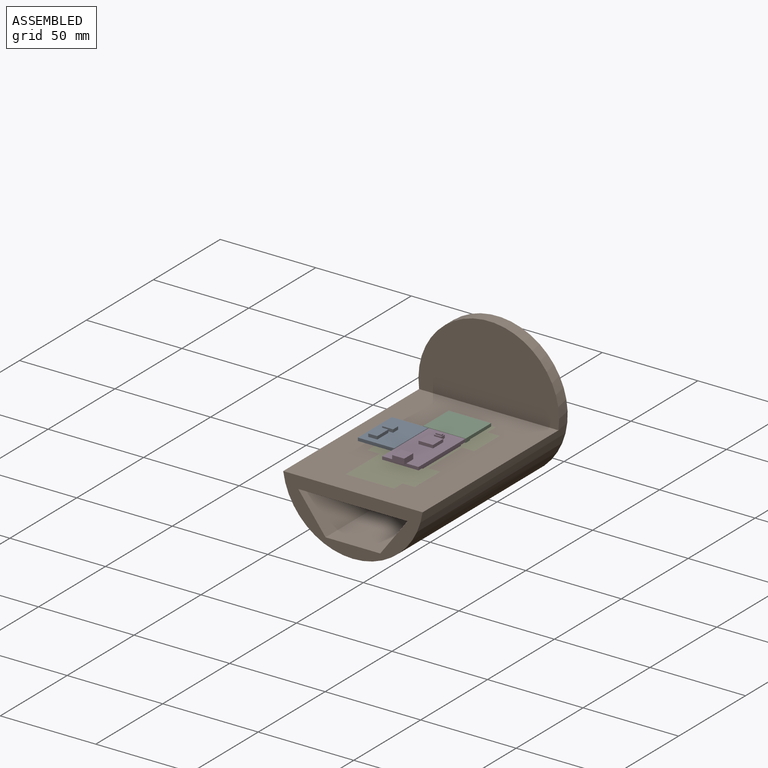
[diagram: assembled view]
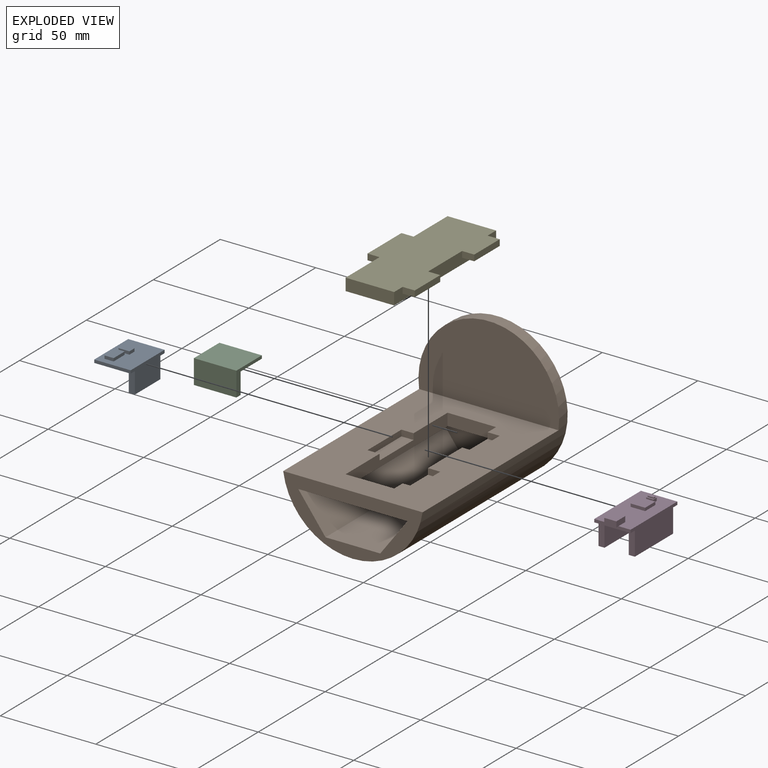
[diagram: exploded view]
GUIDED TOUR — MATED ASSEMBLY (Onshape document 22db25f95f0158fd4fec14de, AutoMate assembly 22db25f95f0158fd4fec14de_e89c0fc2c7fdcc075b0afa05_0247d4dd804453a1db17d36a_default)

This assembly has 5 components, labeled P0..P4 below (a component is one placed occurrence of a part; the same part can appear more than once), held together by 3 mates. A mate is a constraint between two components; its type names the relative motion it leaves free:
  PIN_SLOT — leaves rotation about the listed axis plus translation along a slot free.
Axis/direction vectors are unit vectors and 'through' points are millimeter coordinates, both in the assembly's world frame.

MATES
  1. PIN_SLOT "Right Back Pin": P1 <-> P4, axis (0.000, 0.000, 1.000) through (16.00, -34.98, -3.22) mm
  2. PIN_SLOT "Right Front Pin": P4 <-> P1, axis (0.000, 0.000, -1.000) through (16.00, -79.43, -3.22) mm
  3. PIN_SLOT "Left Middle Pin": P1 <-> P4, axis (0.000, 0.000, 1.000) through (-15.75, -57.20, -3.22) mm

ASSEMBLY ORDER
  1. P1 — the base component [order verified]
  2. P4 [order verified]
  3. P2 [order verified]
  4. P3 [order verified]
  5. P0 [order verified]
Order-tag legend:
  [order verified] — this step's position reverses a verified removal order: the component was checked to insert without passing through the ones already placed.

Of the 5 components, 5 carry the full construction recipe — the FeatureScript program that regenerates the part's solid from scratch; the rest are supplied as boundary geometry only.
Each toured component is shown spotlighted twice — in the assembled view, then in the exploded view, where a leader line traces a displaced component back to its assembled socket (saturated green if recipe-attached, orange if geometry-only; every other component desaturated gray) — followed by its recipe or geometry summary and the mates that hold it.
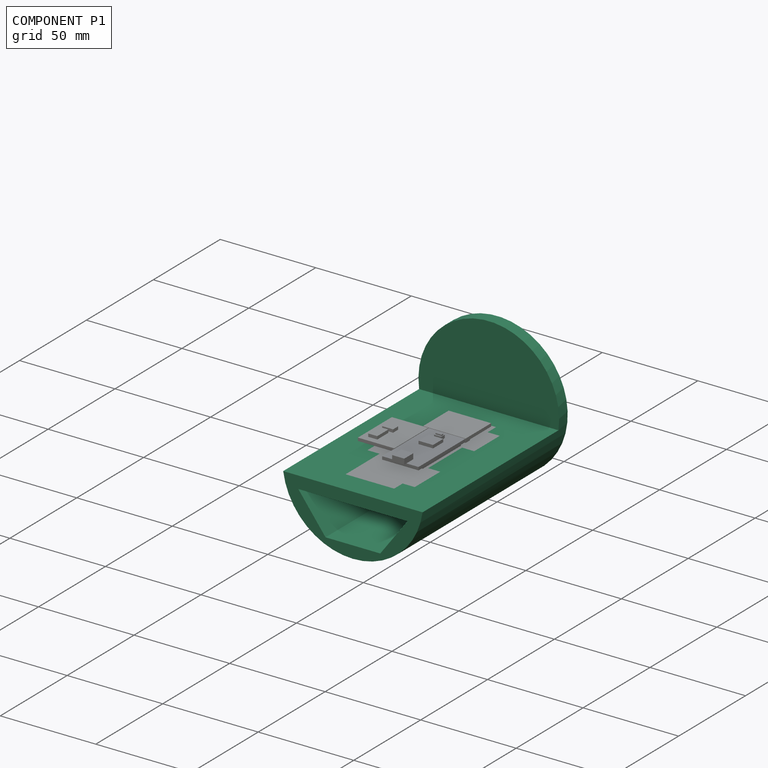
[diagram: component P1 — assembled]
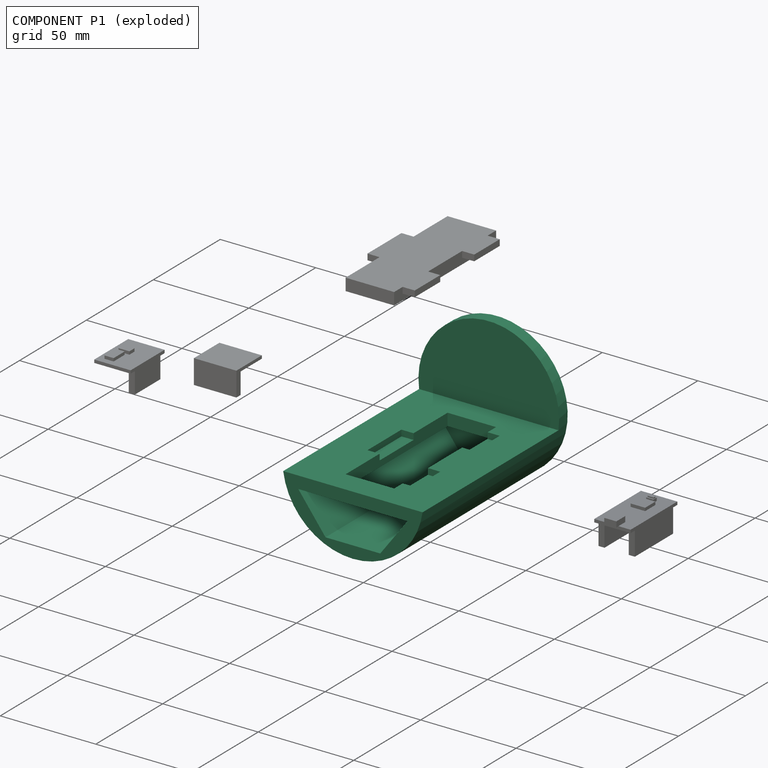
[diagram: component P1 — exploded]
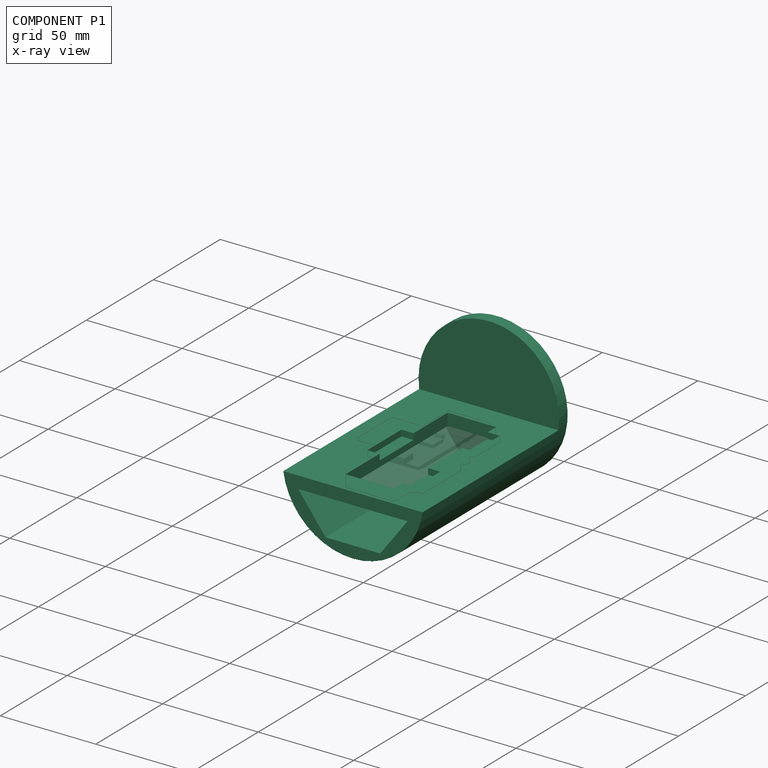
[diagram: component P1 — x-ray view]
COMPONENT P1 — recipe-attached (CADFS 00999147, mesh-verified: the recipe's output STEP matches this component's geometry to below the mesh-comparison resolution (tessellation chordal tolerance ~0.225 mm)).
Held by: PIN_SLOT mate "Right Back Pin" to P4; PIN_SLOT mate "Right Front Pin" to P4; PIN_SLOT mate "Left Middle Pin" to P4.
Construction recipe (FeatureScript — the CAD program that rebuilds this solid; sketch coordinates are in the units given by the * unit suffixes, e.g. mm):

FeatureScript 1549;
import(path : "onshape/std/geometry.fs", version : "1549.0");
import(path : "onshape/std/common.fs", version : "1549.0");
const mm = millimeter;
const VERTEX = EntityType.VERTEX;
const EDGE = EntityType.EDGE;
const FACE = EntityType.FACE;
const BODY = EntityType.BODY;
function v(x, y){return vector(x, y);}
function OD(order){return orderDisambiguation(order);}
function OSD(set){return originalSetDisambiguation(set);}
function TD(topology){return topologyDisambiguation(topology);}
function TDD(query){return trueDependencyDisambiguation(query);}
function sQuery(a, b, c) {return sketchEntityQuery(a, b, c);}

annotation { "Feature Type Name" : "Feature", "Feature Type Description" : "" }
export const myFeature = defineFeature(function(context is Context, id is Id, definition is map)
    precondition{}
    {
        {
            var Q0;
            Q0=qCreatedBy(makeId("Right.planeOp"),FACE);
            var sketch = newSketch(context, id + "F0", { "sketchPlane" : qUnion([Q0])});
            skCircle(sketch, "E0", {"center": v(0, 0) * mm, "radius": 36.83 * mm});
            skSolve(sketch);
        }
        {
            var Q0;
            Q0=makeQuery(id+"F0.imprint","IMPRINT",FACE,{"disambiguationData":[TD([[makeQuery(id+"F0.imprint","IMPRINT",EDGE,{"derivedFrom":sQuery(id+"F0.wireOp",EDGE,"E0")}),1.0]])]});
            var sketch = newSketch(context, id + "F1", { "sketchPlane" : qUnion([Q0])});
            skLineSegment(sketch, "E1.bottom", {"start": v(-20.67, -30.48) * mm, "end": v(20.67, -30.48) * mm});
            skPoint(sketch, "E2", {"position": v(20.67, -30.48) * mm});
            skPoint(sketch, "E3", {"position": v(-20.67, -30.48) * mm});
            skLineSegment(sketch, "E4", {"start": v(12.75, -11.43) * mm, "end": v(35.01, -11.43) * mm});
            skLineSegment(sketch, "E5", {"start": v(-18.88, -11.43) * mm, "end": v(-35, -11.44) * mm});
            skLineSegment(sketch, "E6", {"start": v(12.75, -11.43) * mm, "end": v(-18.88, -11.43) * mm});
            skLineSegment(sketch, "E7", {"start": v(0, -36.83) * mm, "end": v(0, -30.48) * mm});
            skLineSegment(sketch, "E8", {"start": v(0, -30.48) * mm, "end": v(0, -11.43) * mm});
            skLineSegment(sketch, "E9", {"start": v(36.48, -5.08) * mm, "end": v(-36.48, -5.08) * mm});
            skLineSegment(sketch, "E10", {"start": v(0, 0) * mm, "end": v(0, -11.43) * mm});
            skLineSegment(sketch, "E11", {"start": v(-6.28, -5.08) * mm, "end": v(-6.28, -11.43) * mm});
            skLineSegment(sketch, "E12", {"start": v(-35, -11.44) * mm, "end": v(-28.57, -11.43) * mm});
            skLineSegment(sketch, "E13", {"start": v(-20.67, -30.48) * mm, "end": v(-14.32, -30.48) * mm});
            skLineSegment(sketch, "E14", {"start": v(20.67, -30.48) * mm, "end": v(14.32, -30.48) * mm});
            skLineSegment(sketch, "E15", {"start": v(35.01, -11.43) * mm, "end": v(28.58, -11.43) * mm});
            skLineSegment(sketch, "E16", {"start": v(28.58, -11.43) * mm, "end": v(14.32, -30.48) * mm});
            skLineSegment(sketch, "E17", {"start": v(-28.57, -11.43) * mm, "end": v(-14.32, -30.48) * mm});
            skLineSegment(sketch, "E18", {"start": v(-28.57, -11.43) * mm, "end": v(-28.58, -5.08) * mm});
            skLineSegment(sketch, "E19", {"start": v(28.58, -11.43) * mm, "end": v(28.58, -5.08) * mm});
            skLineSegment(sketch, "E20", {"start": v(-28.57, -8.26) * mm, "end": v(28.58, -8.26) * mm});
            skSolve(sketch);
        }
        {
            var Q0;
            {var subQ1=sQuery(id+"F1.wireOp",EDGE,"E5");var subQ5=sQuery(id+"F1.wireOp",EDGE,"E6");var subQ6=makeQuery(id+"F1.imprint","INTERSECT",VERTEX,{"derivedFrom":[subQ1,subQ5]});Q0=makeQuery(id+"F1.imprint","IMPRINT",FACE,{"disambiguationData":[TD([[makeQuery(id+"F1.imprint","IMPRINT",EDGE,{"disambiguationData":[TD([[subQ6,1.0]])],"derivedFrom":subQ5}),-1.0]])]});}
            var Q1;
            {var subQ0=sQuery(id+"F1.wireOp",EDGE,"E19");var subQ3=sQuery(id+"F1.wireOp",EDGE,"E20");var subQ4=makeQuery(id+"F1.imprint","INTERSECT",VERTEX,{"derivedFrom":[subQ0,subQ3]});Q1=makeQuery(id+"F1.imprint","IMPRINT",FACE,{"disambiguationData":[TD([[makeQuery(id+"F1.imprint","IMPRINT",EDGE,{"disambiguationData":[TD([[subQ4,1.0]])],"derivedFrom":subQ3}),-1.0]])]});}
            var Q2;
            {var subQ0=sQuery(id+"F1.wireOp",EDGE,"xOvHg0tn-TEt3-L2ib-0Wm1-0tn3J9Pu9Pb8");Q2=makeQuery(id+"F1.imprint","IMPRINT",FACE,{"disambiguationData":[TD([[makeQuery(id+"F1.imprint","IMPRINT",EDGE,{"derivedFrom":subQ0}),1.0]])]});}
            var Q3;
            {var subQ0=sQuery(id+"F1.wireOp",EDGE,"b1sQyHkT-liFX-Zt2v-cC6f-3GMuSH2HSxCr");Q3=makeQuery(id+"F1.imprint","IMPRINT",FACE,{"disambiguationData":[TD([[makeQuery(id+"F1.imprint","IMPRINT",EDGE,{"derivedFrom":subQ0}),-1.0]])]});}
            var Q4;
            {var subQ3=sQuery(id+"F1.wireOp",EDGE,"tBNurBHI-iiEl-UDbp-ZbHp-QAcbBZfyp1oP");Q4=makeQuery(id+"F1.imprint","IMPRINT",FACE,{"disambiguationData":[TD([[makeQuery(id+"F1.imprint","IMPRINT",EDGE,{"derivedFrom":subQ3}),1.0]])]});}
            var Q5;
            {var subQ3=sQuery(id+"F1.wireOp",EDGE,"T7q5g9tG-IPWu-WYv1-VDKW-RcaV8io13oG5");Q5=makeQuery(id+"F1.imprint","IMPRINT",FACE,{"disambiguationData":[TD([[makeQuery(id+"F1.imprint","IMPRINT",EDGE,{"derivedFrom":subQ3}),-1.0]])]});}
            var Q6;
            {var subQ0=sQuery(id+"F1.wireOp",EDGE,"E7");Q6=makeQuery(id+"F1.imprint","IMPRINT",FACE,{"disambiguationData":[TD([[makeQuery(id+"F1.imprint","IMPRINT",EDGE,{"derivedFrom":subQ0}),1.0]])]});}
            var Q7;
            {var subQ0=sQuery(id+"F1.wireOp",EDGE,"E7");Q7=makeQuery(id+"F1.imprint","IMPRINT",FACE,{"disambiguationData":[TD([[makeQuery(id+"F1.imprint","IMPRINT",EDGE,{"derivedFrom":subQ0}),-1.0]])]});}
            var Q8;
            {var subQ0=sQuery(id+"F1.wireOp",EDGE,"E11");var subQ1=sQuery(id+"F1.wireOp",EDGE,"E9");var subQ2=makeQuery(id+"F1.imprint","INTERSECT",VERTEX,{"derivedFrom":[subQ1,subQ0]});var subQ9=sQuery(id+"F1.wireOp",EDGE,"E6");var subQ10=makeQuery(id+"F1.imprint","INTERSECT",VERTEX,{"derivedFrom":[subQ9,subQ0]});Q8=qUnion([makeQuery(id+"F1.imprint","IMPRINT",FACE,{"disambiguationData":[TD([[makeQuery(id+"F1.imprint","IMPRINT",EDGE,{"disambiguationData":[TD([[subQ10,1.0]])],"derivedFrom":subQ0}),1.0]])]}),makeQuery(id+"F1.imprint","IMPRINT",FACE,{"disambiguationData":[TD([[makeQuery(id+"F1.imprint","IMPRINT",EDGE,{"disambiguationData":[TD([[subQ2,1.0]])],"derivedFrom":subQ1}),1.0]])]})]);}
            var Q9;
            {var subQ0=sQuery(id+"F1.wireOp",EDGE,"E18");var subQ4=sQuery(id+"F1.wireOp",EDGE,"E9");var subQ5=makeQuery(id+"F1.imprint","INTERSECT",VERTEX,{"derivedFrom":[subQ4,subQ0]});Q9=makeQuery(id+"F1.imprint","IMPRINT",FACE,{"disambiguationData":[TD([[makeQuery(id+"F1.imprint","IMPRINT",EDGE,{"disambiguationData":[TD([[subQ5,-1.0]])],"derivedFrom":subQ4}),1.0]])]});}
            var Q10;
            {var subQ0=sQuery(id+"F1.wireOp",EDGE,"E11");var subQ1=sQuery(id+"F1.wireOp",EDGE,"E9");var subQ2=makeQuery(id+"F1.imprint","INTERSECT",VERTEX,{"derivedFrom":[subQ1,subQ0]});Q10=makeQuery(id+"F1.imprint","IMPRINT",FACE,{"disambiguationData":[TD([[makeQuery(id+"F1.imprint","IMPRINT",EDGE,{"disambiguationData":[TD([[subQ2,-1.0]])],"derivedFrom":subQ1}),1.0]])]});}
            var Q11;
            {var subQ0=sQuery(id+"F1.wireOp",EDGE,"E19");var subQ1=sQuery(id+"F1.wireOp",EDGE,"E9");var subQ2=makeQuery(id+"F1.imprint","INTERSECT",VERTEX,{"derivedFrom":[subQ1,subQ0]});Q11=makeQuery(id+"F1.imprint","IMPRINT",FACE,{"disambiguationData":[TD([[makeQuery(id+"F1.imprint","IMPRINT",EDGE,{"disambiguationData":[TD([[subQ2,-1.0]])],"derivedFrom":subQ1}),1.0]])]});}
            var Q12;
            {var subQ0=sQuery(id+"F1.wireOp",EDGE,"E19");var subQ6=sQuery(id+"F1.wireOp",EDGE,"E9");var subQ7=makeQuery(id+"F1.imprint","INTERSECT",VERTEX,{"derivedFrom":[subQ6,subQ0]});Q12=makeQuery(id+"F1.imprint","IMPRINT",FACE,{"disambiguationData":[TD([[makeQuery(id+"F1.imprint","IMPRINT",EDGE,{"disambiguationData":[TD([[subQ7,1.0]])],"derivedFrom":subQ6}),1.0]])]});}
            var Q13;
            {var subQ0=sQuery(id+"F1.wireOp",EDGE,"E16");Q13=makeQuery(id+"F1.imprint","IMPRINT",FACE,{"disambiguationData":[TD([[makeQuery(id+"F1.imprint","IMPRINT",EDGE,{"derivedFrom":subQ0}),1.0]])]});}
            var Q14;
            {var subQ0=sQuery(id+"F1.wireOp",EDGE,"E17");Q14=makeQuery(id+"F1.imprint","IMPRINT",FACE,{"disambiguationData":[TD([[makeQuery(id+"F1.imprint","IMPRINT",EDGE,{"derivedFrom":subQ0}),-1.0]])]});}
            extrude(context, id + "F2", {"entities" : qUnion([Q0, Q1, Q2, Q3, Q4, Q5, Q6, Q7, Q8, Q9, Q10, Q11, Q12, Q13, Q14]), "depth" : 101.6 * mm, "offsetDistance" : 25.4 * mm});
        }
        {
            var Q0;
            Q0 = qSketchRegion(id + "F0", true);
            extrude(context, id + "F3", {"entities" : qUnion([Q0]), "operationType" : NewBodyOperationType.ADD, "oppositeDirection" : true, "depth" : 6.35 * mm, "offsetDistance" : 25.4 * mm});
        }
        {
            var Q0;
            Q0=makeQuery(id+"F2.opExtrude","SWEPT_FACE",FACE,{"disambiguationData":[OSD([sQuery(id+"F1.wireOp",EDGE,"E9")])]});
            var sketch = newSketch(context, id + "F4", { "sketchPlane" : qUnion([Q0])});
            skPoint(sketch, "E21.startSnap0", {"position": v(101.6, 0) * mm});
            skLineSegment(sketch, "E22.bottom", {"start": v(12.7, 12.7) * mm, "end": v(50.8, 12.7) * mm});
            skLineSegment(sketch, "E22.top", {"start": v(12.7, -12.7) * mm, "end": v(50.8, -12.7) * mm});
            skLineSegment(sketch, "E22.left", {"start": v(12.7, 12.7) * mm, "end": v(12.7, -12.7) * mm});
            skPoint(sketch, "E22.middle", {"position": v(31.75, 0) * mm});
            skLineSegment(sketch, "E23.bottom", {"start": v(12.7, -12.7) * mm, "end": v(88.9, -12.7) * mm});
            skLineSegment(sketch, "E23.top", {"start": v(12.7, -19.05) * mm, "end": v(88.9, -19.05) * mm});
            skLineSegment(sketch, "E23.left", {"start": v(12.7, -12.7) * mm, "end": v(12.7, -19.05) * mm});
            skLineSegment(sketch, "E23.right", {"start": v(88.9, -12.7) * mm, "end": v(88.9, -19.05) * mm});
            skLineSegment(sketch, "E24.bottom", {"start": v(12.7, 12.7) * mm, "end": v(88.9, 12.7) * mm});
            skLineSegment(sketch, "E24.top", {"start": v(12.7, 19.05) * mm, "end": v(88.9, 19.05) * mm});
            skLineSegment(sketch, "E24.left", {"start": v(12.7, 12.7) * mm, "end": v(12.7, 19.05) * mm});
            skLineSegment(sketch, "E24.right", {"start": v(88.9, 12.7) * mm, "end": v(88.9, 19.05) * mm});
            skLineSegment(sketch, "E25", {"start": v(12.7, -15.88) * mm, "end": v(38.1, -15.88) * mm});
            skLineSegment(sketch, "E26", {"start": v(38.1, -12.7) * mm, "end": v(38.1, -19.05) * mm});
            skLineSegment(sketch, "E27", {"start": v(88.9, -15.88) * mm, "end": v(63.5, -15.88) * mm});
            skLineSegment(sketch, "E28", {"start": v(63.5, -12.7) * mm, "end": v(63.5, -19.05) * mm});
            skLineSegment(sketch, "E29", {"start": v(12.7, 15.87) * mm, "end": v(19.05, 15.88) * mm});
            skLineSegment(sketch, "E30", {"start": v(19.05, 15.88) * mm, "end": v(19.05, 19.05) * mm});
            skLineSegment(sketch, "E31", {"start": v(19.05, 19.05) * mm, "end": v(19.05, 12.7) * mm});
            skLineSegment(sketch, "E32", {"start": v(88.9, 15.88) * mm, "end": v(82.55, 15.88) * mm});
            skLineSegment(sketch, "E33", {"start": v(82.55, 15.88) * mm, "end": v(82.55, 19.05) * mm});
            skLineSegment(sketch, "E34", {"start": v(82.55, 19.05) * mm, "end": v(82.55, 12.7) * mm});
            skLineSegment(sketch, "E35", {"start": v(50.8, 12.7) * mm, "end": v(50.8, 19.05) * mm});
            skLineSegment(sketch, "E36", {"start": v(50.8, 15.88) * mm, "end": v(38.1, 15.88) * mm});
            skLineSegment(sketch, "E37", {"start": v(50.8, 15.88) * mm, "end": v(63.5, 15.88) * mm});
            skLineSegment(sketch, "E38", {"start": v(38.1, 19.05) * mm, "end": v(38.1, 12.7) * mm});
            skLineSegment(sketch, "E39", {"start": v(0, 0) * mm, "end": v(12.7, 0) * mm});
            skLineSegment(sketch, "E40", {"start": v(88.9, 12.7) * mm, "end": v(88.9, -12.7) * mm});
            skLineSegment(sketch, "E41", {"start": v(101.6, 0) * mm, "end": v(88.9, 0) * mm});
            skLineSegment(sketch, "E42", {"start": v(63.5, 19.05) * mm, "end": v(63.5, 12.7) * mm});
            skSolve(sketch);
        }
        {
            var Q0;
            {var subQ12=sQuery(id+"F4.wireOp",EDGE,"E22.bottom");var subQ15=makeQuery(id+"F4.imprint","INTERSECT",VERTEX,{"derivedFrom":[subQ12,sQuery(id+"F4.wireOp",EDGE,"E31")]});Q0=makeQuery(id+"F4.imprint","IMPRINT",FACE,{"disambiguationData":[TD([[makeQuery(id+"F4.imprint","IMPRINT",EDGE,{"disambiguationData":[TD([[subQ15,-1.0]])],"derivedFrom":subQ12}),-1.0]])]});}
            extrude(context, id + "F5", {"entities" : qUnion([Q0]), "operationType" : NewBodyOperationType.REMOVE, "oppositeDirection" : true, "depth" : 6.35 * mm, "offsetDistance" : 25.4 * mm});
        }
        {
            var Q0;
            {var subQ2=sQuery(id+"F4.wireOp",EDGE,"E22.top");var subQ4=sQuery(id+"F4.wireOp",EDGE,"E23.bottom");var subQ5=makeQuery(id+"F4.imprint","INTERSECT",VERTEX,{"derivedFrom":[subQ2,subQ4]});Q0=makeQuery(id+"F4.imprint","IMPRINT",FACE,{"disambiguationData":[TD([[makeQuery(id+"F4.imprint","IMPRINT",EDGE,{"disambiguationData":[TD([[subQ5,1.0]])],"derivedFrom":subQ2}),-1.0]])]});}
            var Q1;
            {var subQ1=sQuery(id+"F4.wireOp",EDGE,"E30");Q1=makeQuery(id+"F4.imprint","IMPRINT",FACE,{"disambiguationData":[TD([[makeQuery(id+"F4.imprint","IMPRINT",EDGE,{"derivedFrom":subQ1}),-1.0]])]});}
            var Q2;
            {var subQ0=sQuery(id+"F4.wireOp",EDGE,"E33");Q2=makeQuery(id+"F4.imprint","IMPRINT",FACE,{"disambiguationData":[TD([[makeQuery(id+"F4.imprint","IMPRINT",EDGE,{"derivedFrom":subQ0}),1.0]])]});}
            extrude(context, id + "F6", {"entities" : qUnion([Q0, Q1, Q2]), "operationType" : NewBodyOperationType.REMOVE, "oppositeDirection" : true, "depth" : 3.17 * mm, "offsetDistance" : 25.4 * mm});
        }
    });
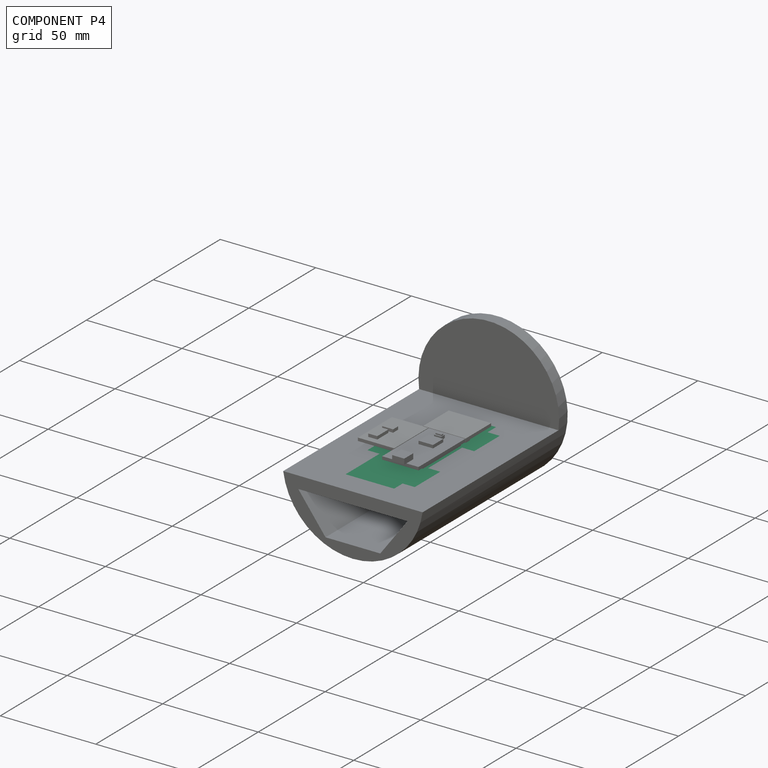
[diagram: component P4 — assembled]
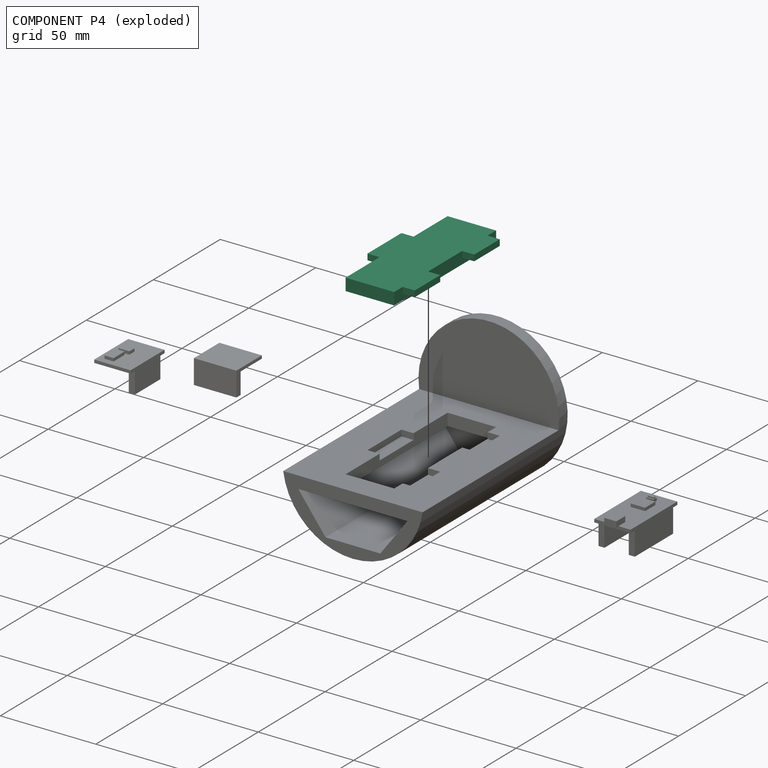
[diagram: component P4 — exploded]
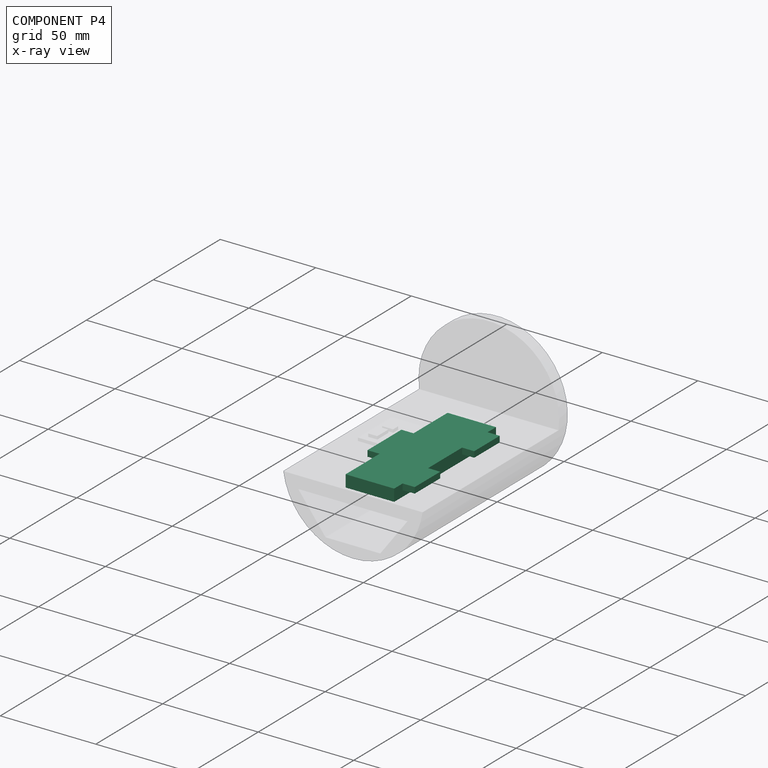
[diagram: component P4 — x-ray view]
COMPONENT P4 — recipe-attached (CADFS 00999148, mesh-verified: the recipe's output STEP matches this component's geometry to below the mesh-comparison resolution (tessellation chordal tolerance ~0.128 mm)).
Held by: PIN_SLOT mate "Right Back Pin" to P1; PIN_SLOT mate "Right Front Pin" to P1; PIN_SLOT mate "Left Middle Pin" to P1.
Construction recipe (FeatureScript — the CAD program that rebuilds this solid; sketch coordinates are in the units given by the * unit suffixes, e.g. mm):

FeatureScript 1549;
import(path : "onshape/std/geometry.fs", version : "1549.0");
import(path : "onshape/std/common.fs", version : "1549.0");
const mm = millimeter;
const VERTEX = EntityType.VERTEX;
const EDGE = EntityType.EDGE;
const FACE = EntityType.FACE;
const BODY = EntityType.BODY;
function v(x, y){return vector(x, y);}
function OD(order){return orderDisambiguation(order);}
function OSD(set){return originalSetDisambiguation(set);}
function TD(topology){return topologyDisambiguation(topology);}
function TDD(query){return trueDependencyDisambiguation(query);}
function sQuery(a, b, c) {return sketchEntityQuery(a, b, c);}

annotation { "Feature Type Name" : "Feature", "Feature Type Description" : "" }
export const myFeature = defineFeature(function(context is Context, id is Id, definition is map)
    precondition{}
    {
        {
            var Q0;
            Q0=qCreatedBy(makeId("Right.planeOp"),FACE);
            var sketch = newSketch(context, id + "F0", { "sketchPlane" : qUnion([Q0])});
            skLineSegment(sketch, "E0.bottom", {"start": v(12.7, -3.17) * mm, "end": v(-12.7, -3.18) * mm});
            skLineSegment(sketch, "E0.top", {"start": v(12.7, 3.18) * mm, "end": v(-12.7, 3.17) * mm});
            skLineSegment(sketch, "E0.left", {"start": v(12.7, -3.17) * mm, "end": v(12.7, 3.18) * mm});
            skLineSegment(sketch, "E0.right", {"start": v(-12.7, -3.18) * mm, "end": v(-12.7, 3.17) * mm});
            skPoint(sketch, "E0.middle", {"position": v(0, 0) * mm});
            skSolve(sketch);
        }
        {
            var Q0;
            Q0 = qSketchRegion(id + "F0", true);
            extrude(context, id + "F1", {"entities" : qUnion([Q0]), "depth" : 76.2 * mm, "offsetDistance" : 25.4 * mm});
        }
        {
            var Q0;
            Q0=makeQuery(id+"F1.opExtrude","SWEPT_FACE",FACE,{"disambiguationData":[OSD([sQuery(id+"F0.wireOp",EDGE,"E0.right")])]});
            var sketch = newSketch(context, id + "F2", { "sketchPlane" : qUnion([Q0])});
            skLineSegment(sketch, "E1", {"start": v(0, 0) * mm, "end": v(25.4, 0) * mm});
            skLineSegment(sketch, "E2", {"start": v(76.2, 0) * mm, "end": v(50.8, 0) * mm});
            skLineSegment(sketch, "E3.bottom", {"start": v(25.4, 0) * mm, "end": v(50.8, 0) * mm});
            skLineSegment(sketch, "E3.top", {"start": v(25.4, 3.17) * mm, "end": v(50.8, 3.17) * mm});
            skLineSegment(sketch, "E3.left", {"start": v(25.4, 0) * mm, "end": v(25.4, 3.17) * mm});
            skLineSegment(sketch, "E3.right", {"start": v(50.8, 0) * mm, "end": v(50.8, 3.17) * mm});
            skLineSegment(sketch, "E4", {"start": v(16, 0) * mm, "end": v(16, 3.17) * mm});
            skSolve(sketch);
        }
        {
            var Q0;
            Q0=makeQuery(id+"F2.imprint","IMPRINT",FACE,{"disambiguationData":[TD([[makeQuery(id+"F2.imprint","IMPRINT",EDGE,{"derivedFrom":sQuery(id+"F2.wireOp",EDGE,"E3.bottom")}),1.0]])]});
            extrude(context, id + "F3", {"entities" : qUnion([Q0]), "operationType" : NewBodyOperationType.ADD, "depth" : 6.35 * mm, "offsetDistance" : 25.4 * mm});
        }
        {
            var Q0;
            Q0=makeQuery(id+"F1.opExtrude","SWEPT_FACE",FACE,{"disambiguationData":[OSD([sQuery(id+"F0.wireOp",EDGE,"E0.left")])]});
            var sketch = newSketch(context, id + "F4", { "sketchPlane" : qUnion([Q0])});
            skLineSegment(sketch, "E5", {"start": v(-76.2, 0) * mm, "end": v(-69.85, 0) * mm});
            skLineSegment(sketch, "E6", {"start": v(-6.35, 0) * mm, "end": v(0, 0) * mm});
            skLineSegment(sketch, "E7", {"start": v(-38.1, 0) * mm, "end": v(-25.4, 0) * mm});
            skPoint(sketch, "E7.startSnap0", {"position": v(-38.1, 0) * mm});
            skLineSegment(sketch, "E8", {"start": v(-38.1, 0) * mm, "end": v(-50.8, 0) * mm});
            skLineSegment(sketch, "E9", {"start": v(-50.8, 3.17) * mm, "end": v(-50.8, -3.17) * mm});
            skLineSegment(sketch, "E10", {"start": v(-69.85, 3.17) * mm, "end": v(-69.85, -3.17) * mm});
            skLineSegment(sketch, "E11", {"start": v(-25.4, 3.17) * mm, "end": v(-25.4, -3.17) * mm});
            skLineSegment(sketch, "E12", {"start": v(-6.35, 3.17) * mm, "end": v(-6.35, -3.17) * mm});
            skLineSegment(sketch, "E13", {"start": v(-69.85, 0) * mm, "end": v(-50.8, 0) * mm});
            skLineSegment(sketch, "E14", {"start": v(-25.4, 0) * mm, "end": v(-6.35, 0) * mm});
            skLineSegment(sketch, "E15", {"start": v(-38.1, 0) * mm, "end": v(-38.1, 3.18) * mm});
            skSolve(sketch);
        }
        {
            var Q0;
            {var subQ7=sQuery(id+"F4.wireOp",EDGE,"E9");var subQ8=makeQuery(id+"F4.imprint","INTERSECT",VERTEX,{"derivedFrom":[sQuery(id+"F4.wireOp",EDGE,"E8"),subQ7]});Q0=makeQuery(id+"F4.imprint","IMPRINT",FACE,{"disambiguationData":[TD([[makeQuery(id+"F4.imprint","IMPRINT",EDGE,{"disambiguationData":[TD([[subQ8,1.0]])],"derivedFrom":subQ7}),-1.0]])]});}
            var Q1;
            {var subQ7=sQuery(id+"F4.wireOp",EDGE,"E11");var subQ8=makeQuery(id+"F4.imprint","INTERSECT",VERTEX,{"derivedFrom":[sQuery(id+"F4.wireOp",EDGE,"E7"),subQ7]});Q1=makeQuery(id+"F4.imprint","IMPRINT",FACE,{"disambiguationData":[TD([[makeQuery(id+"F4.imprint","IMPRINT",EDGE,{"disambiguationData":[TD([[subQ8,1.0]])],"derivedFrom":subQ7}),1.0]])]});}
            extrude(context, id + "F5", {"entities" : qUnion([Q0, Q1]), "operationType" : NewBodyOperationType.ADD, "depth" : 6.35 * mm, "offsetDistance" : 25.4 * mm});
        }
    });
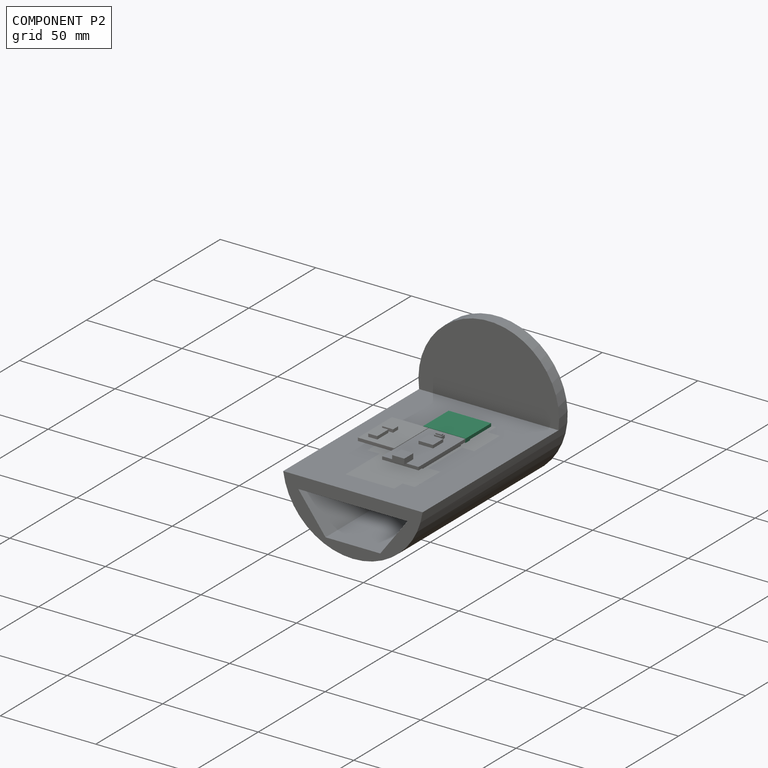
[diagram: component P2 — assembled]
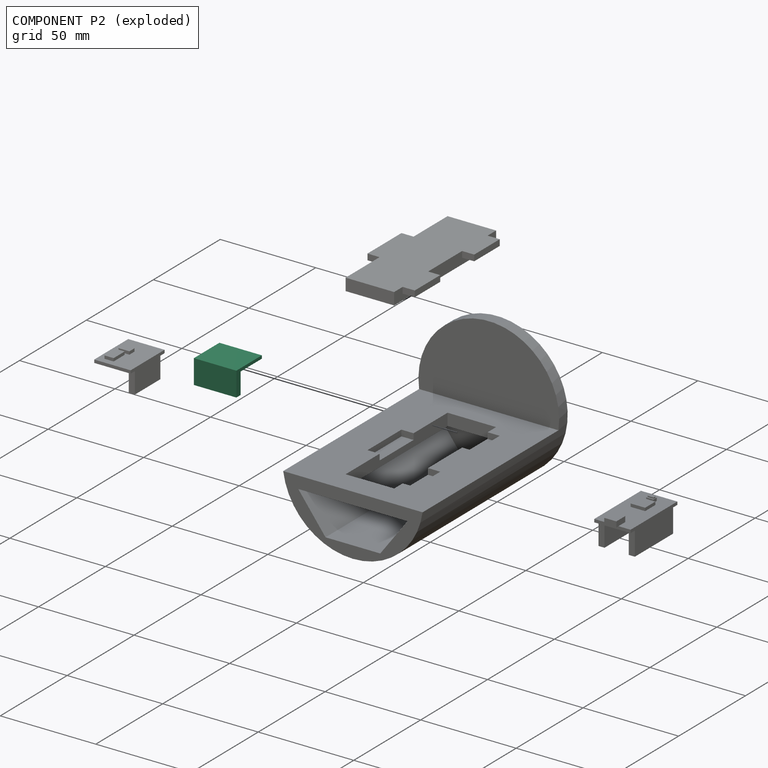
[diagram: component P2 — exploded]
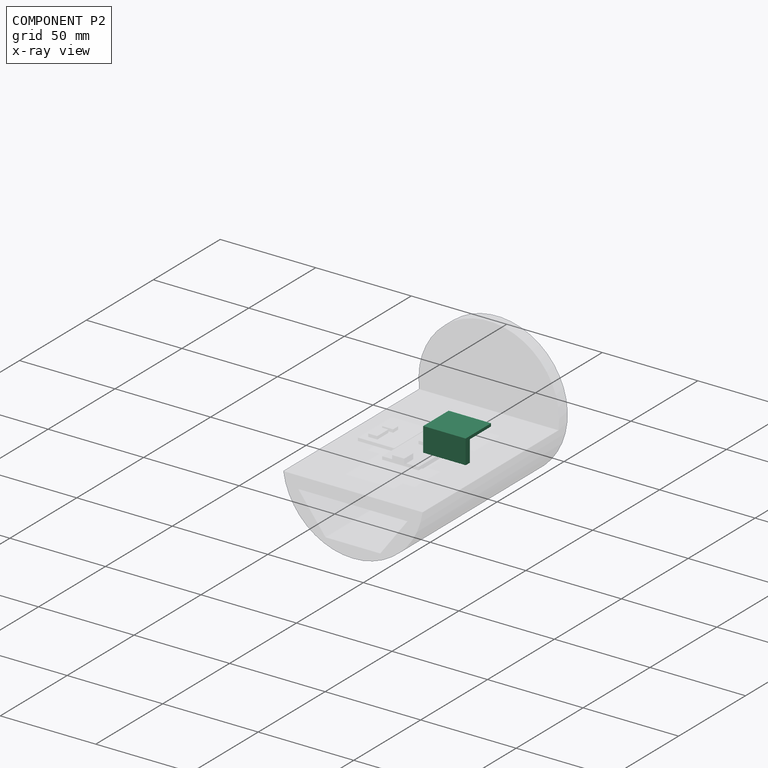
[diagram: component P2 — x-ray view]
COMPONENT P2 — recipe-attached (CADFS 00999142, mesh-verified: the recipe's output STEP matches this component's geometry to below the mesh-comparison resolution (tessellation chordal tolerance ~0.0479 mm)).
Held by: no mates (free).
Construction recipe (FeatureScript — the CAD program that rebuilds this solid; sketch coordinates are in the units given by the * unit suffixes, e.g. mm):

FeatureScript 1549;
import(path : "onshape/std/geometry.fs", version : "1549.0");
import(path : "onshape/std/common.fs", version : "1549.0");
const mm = millimeter;
const VERTEX = EntityType.VERTEX;
const EDGE = EntityType.EDGE;
const FACE = EntityType.FACE;
const BODY = EntityType.BODY;
function v(x, y){return vector(x, y);}
function OD(order){return orderDisambiguation(order);}
function OSD(set){return originalSetDisambiguation(set);}
function TD(topology){return topologyDisambiguation(topology);}
function TDD(query){return trueDependencyDisambiguation(query);}
function sQuery(a, b, c) {return sketchEntityQuery(a, b, c);}

annotation { "Feature Type Name" : "Feature", "Feature Type Description" : "" }
export const myFeature = defineFeature(function(context is Context, id is Id, definition is map)
    precondition{}
    {
        {
            var Q0;
            Q0=qCreatedBy(makeId("Top.planeOp"),FACE);
            var sketch = newSketch(context, id + "F0", { "sketchPlane" : qUnion([Q0])});
            skLineSegment(sketch, "E0.bottom", {"start": v(9.53, 11.11) * mm, "end": v(-9.52, 11.11) * mm});
            skLineSegment(sketch, "E0.top", {"start": v(9.52, -11.11) * mm, "end": v(-9.53, -11.11) * mm});
            skLineSegment(sketch, "E0.left", {"start": v(9.53, 11.11) * mm, "end": v(9.52, -11.11) * mm});
            skLineSegment(sketch, "E0.right", {"start": v(-9.52, 11.11) * mm, "end": v(-9.53, -11.11) * mm});
            skPoint(sketch, "E0.middle", {"position": v(0, 0) * mm});
            skLineSegment(sketch, "E1.bottom", {"start": v(9.53, 11.11) * mm, "end": v(-3.18, 11.11) * mm});
            skLineSegment(sketch, "E1.top", {"start": v(9.53, -11.11) * mm, "end": v(-3.17, -11.11) * mm});
            skLineSegment(sketch, "E1.left", {"start": v(9.53, 11.11) * mm, "end": v(9.53, -11.11) * mm});
            skLineSegment(sketch, "E1.right", {"start": v(-3.18, 11.11) * mm, "end": v(-3.17, -11.11) * mm});
            skLineSegment(sketch, "E2.top", {"start": v(9.53, 8.06) * mm, "end": v(-3.18, 8.06) * mm});
            skLineSegment(sketch, "E2.left", {"start": v(9.53, 11.11) * mm, "end": v(9.53, 8.06) * mm});
            skLineSegment(sketch, "E2.right", {"start": v(-3.18, 11.11) * mm, "end": v(-3.18, 8.06) * mm});
            skLineSegment(sketch, "E3.bottom", {"start": v(9.52, -11.11) * mm, "end": v(-3.17, -11.11) * mm});
            skLineSegment(sketch, "E3.top", {"start": v(9.52, -8.06) * mm, "end": v(-3.17, -8.06) * mm});
            skLineSegment(sketch, "E3.left", {"start": v(9.52, -11.11) * mm, "end": v(9.52, -8.06) * mm});
            skLineSegment(sketch, "E3.right", {"start": v(-3.17, -11.11) * mm, "end": v(-3.17, -8.06) * mm});
            skLineSegment(sketch, "E4.bottom", {"start": v(-9.52, 11.11) * mm, "end": v(-6.35, 11.11) * mm});
            skLineSegment(sketch, "E4.top", {"start": v(-9.52, -11.11) * mm, "end": v(-6.35, -11.11) * mm});
            skLineSegment(sketch, "E4.left", {"start": v(-9.52, 11.11) * mm, "end": v(-9.52, -11.11) * mm});
            skLineSegment(sketch, "E4.right", {"start": v(-6.35, 11.11) * mm, "end": v(-6.35, -11.11) * mm});
            skSolve(sketch);
        }
        {
            var Q0;
            {var subQ5=sQuery(id+"F0.wireOp",EDGE,"E4.right");Q0=makeQuery(id+"F0.imprint","IMPRINT",FACE,{"disambiguationData":[TD([[makeQuery(id+"F0.imprint","IMPRINT",EDGE,{"derivedFrom":subQ5}),1.0]])]});}
            var Q1;
            {var subQ5=sQuery(id+"F0.wireOp",EDGE,"E3.top");Q1=makeQuery(id+"F0.imprint","IMPRINT",FACE,{"disambiguationData":[TD([[makeQuery(id+"F0.imprint","IMPRINT",EDGE,{"derivedFrom":subQ5}),1.0]])]});}
            var Q2;
            {var subQ5=sQuery(id+"F0.wireOp",EDGE,"E2.top");Q2=makeQuery(id+"F0.imprint","IMPRINT",FACE,{"disambiguationData":[TD([[makeQuery(id+"F0.imprint","IMPRINT",EDGE,{"derivedFrom":subQ5}),-1.0]])]});}
            extrude(context, id + "F1", {"entities" : qUnion([Q0, Q1, Q2]), "oppositeDirection" : true, "depth" : 1.59 * mm, "offsetDistance" : 25.4 * mm});
        }
        {
            var Q0;
            {var subQ2=sQuery(id+"F0.wireOp",EDGE,"E0.right");Q0=makeQuery(id+"F0.imprint","IMPRINT",FACE,{"disambiguationData":[TD([[makeQuery(id+"F0.imprint","IMPRINT",EDGE,{"derivedFrom":subQ2}),1.0]])]});}
            extrude(context, id + "F2", {"entities" : qUnion([Q0]), "operationType" : NewBodyOperationType.ADD, "oppositeDirection" : true, "depth" : 12.7 * mm, "offsetDistance" : 25.4 * mm});
        }
        {
            var Q0;
            {var subQ0=sQuery(id+"F0.wireOp",EDGE,"E2.top");Q0=makeQuery(id+"F0.imprint","IMPRINT",FACE,{"disambiguationData":[TD([[makeQuery(id+"F0.imprint","IMPRINT",EDGE,{"derivedFrom":subQ0}),1.0]])]});}
            extrude(context, id + "F3", {"entities" : qUnion([Q0]), "operationType" : NewBodyOperationType.ADD, "oppositeDirection" : true, "depth" : 3.17 * mm, "offsetDistance" : 25.4 * mm});
        }
    });
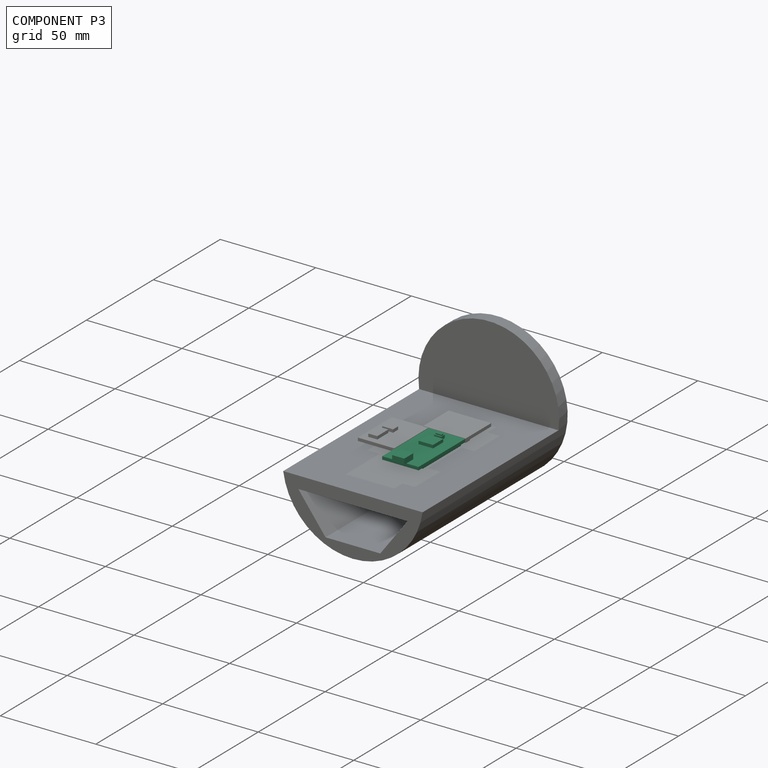
[diagram: component P3 — assembled]
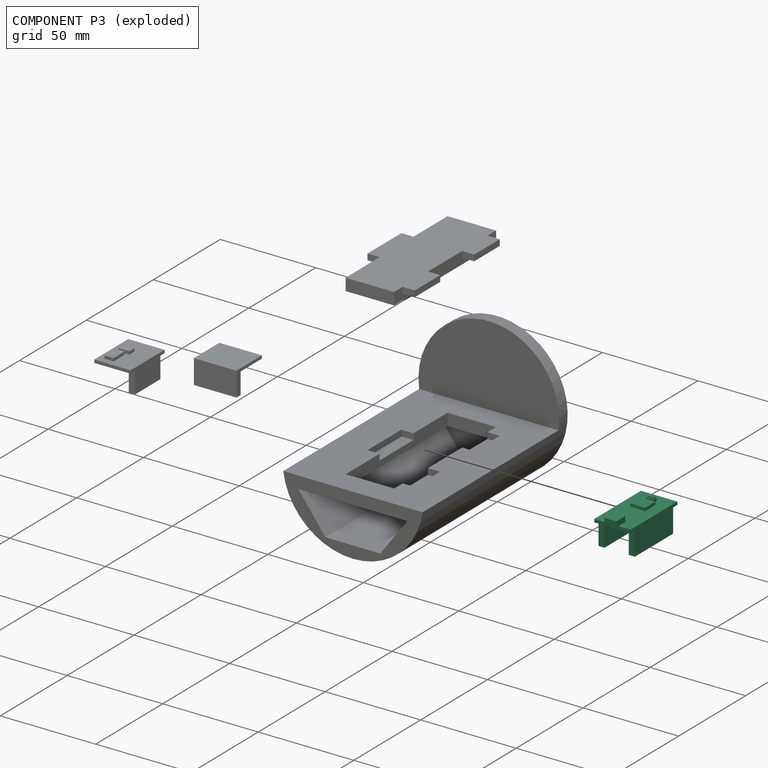
[diagram: component P3 — exploded]
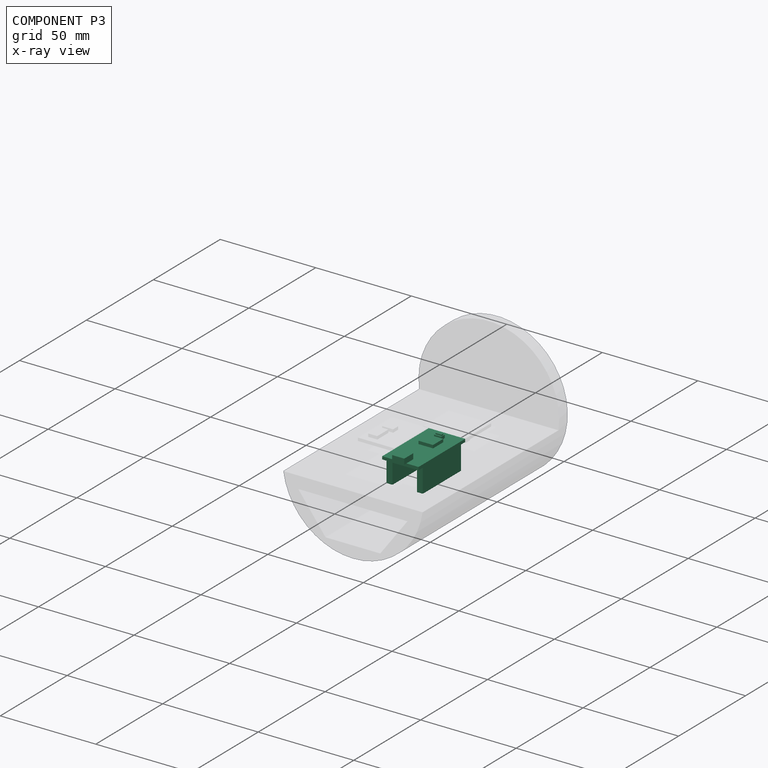
[diagram: component P3 — x-ray view]
COMPONENT P3 — recipe-attached (CADFS 00999144, mesh-verified: the recipe's output STEP matches this component's geometry to below the mesh-comparison resolution (tessellation chordal tolerance ~0.0667 mm)).
Held by: no mates (free).
Construction recipe (FeatureScript — the CAD program that rebuilds this solid; sketch coordinates are in the units given by the * unit suffixes, e.g. mm):

FeatureScript 1549;
import(path : "onshape/std/geometry.fs", version : "1549.0");
import(path : "onshape/std/common.fs", version : "1549.0");
const mm = millimeter;
const VERTEX = EntityType.VERTEX;
const EDGE = EntityType.EDGE;
const FACE = EntityType.FACE;
const BODY = EntityType.BODY;
function v(x, y){return vector(x, y);}
function OD(order){return orderDisambiguation(order);}
function OSD(set){return originalSetDisambiguation(set);}
function TD(topology){return topologyDisambiguation(topology);}
function TDD(query){return trueDependencyDisambiguation(query);}
function sQuery(a, b, c) {return sketchEntityQuery(a, b, c);}

annotation { "Feature Type Name" : "Feature", "Feature Type Description" : "" }
export const myFeature = defineFeature(function(context is Context, id is Id, definition is map)
    precondition{}
    {
        {
            var Q0;
            Q0=qCreatedBy(makeId("Top.planeOp"),FACE);
            var sketch = newSketch(context, id + "F0", { "sketchPlane" : qUnion([Q0])});
            skLineSegment(sketch, "E0.bottom", {"start": v(9.53, -17.46) * mm, "end": v(-9.52, -17.46) * mm});
            skLineSegment(sketch, "E0.top", {"start": v(9.52, 17.46) * mm, "end": v(-9.53, 17.46) * mm});
            skLineSegment(sketch, "E0.left", {"start": v(9.53, -17.46) * mm, "end": v(9.52, 17.46) * mm});
            skLineSegment(sketch, "E0.right", {"start": v(-9.52, -17.46) * mm, "end": v(-9.53, 17.46) * mm});
            skPoint(sketch, "E0.middle", {"position": v(0, 0) * mm});
            skLineSegment(sketch, "E1.bottom", {"start": v(-9.53, 17.46) * mm, "end": v(9.52, 17.46) * mm});
            skLineSegment(sketch, "E1.top", {"start": v(-9.53, 14.29) * mm, "end": v(9.52, 14.29) * mm});
            skLineSegment(sketch, "E1.left", {"start": v(-9.53, 17.46) * mm, "end": v(-9.53, 14.29) * mm});
            skLineSegment(sketch, "E1.right", {"start": v(9.52, 17.46) * mm, "end": v(9.52, 14.29) * mm});
            skLineSegment(sketch, "E2.bottom", {"start": v(-9.52, -17.46) * mm, "end": v(9.53, -17.46) * mm});
            skLineSegment(sketch, "E2.top", {"start": v(-9.52, -14.29) * mm, "end": v(9.53, -14.29) * mm});
            skLineSegment(sketch, "E2.left", {"start": v(-9.52, -17.46) * mm, "end": v(-9.52, -14.29) * mm});
            skLineSegment(sketch, "E2.right", {"start": v(9.53, -17.46) * mm, "end": v(9.53, -14.29) * mm});
            skLineSegment(sketch, "E3.bottom", {"start": v(-9.53, 14.29) * mm, "end": v(-6.35, 14.29) * mm});
            skLineSegment(sketch, "E3.top", {"start": v(-9.53, -14.29) * mm, "end": v(-6.35, -14.29) * mm});
            skLineSegment(sketch, "E3.left", {"start": v(-9.53, 14.29) * mm, "end": v(-9.53, -14.29) * mm});
            skLineSegment(sketch, "E3.right", {"start": v(-6.35, 14.29) * mm, "end": v(-6.35, -14.29) * mm});
            skLineSegment(sketch, "E4.bottom", {"start": v(9.52, 14.29) * mm, "end": v(6.35, 14.29) * mm});
            skLineSegment(sketch, "E4.top", {"start": v(9.52, -14.29) * mm, "end": v(6.35, -14.29) * mm});
            skLineSegment(sketch, "E4.left", {"start": v(9.52, 14.29) * mm, "end": v(9.52, -14.29) * mm});
            skLineSegment(sketch, "E4.right", {"start": v(6.35, 14.29) * mm, "end": v(6.35, -14.29) * mm});
            skLineSegment(sketch, "E5.bottom", {"start": v(9.53, -14.29) * mm, "end": v(3.83, -14.29) * mm});
            skLineSegment(sketch, "E5.top", {"start": v(9.53, -17.46) * mm, "end": v(3.81, -17.46) * mm});
            skLineSegment(sketch, "E5.left", {"start": v(9.53, -14.29) * mm, "end": v(9.53, -17.46) * mm});
            skLineSegment(sketch, "E6.bottom", {"start": v(-9.52, -14.29) * mm, "end": v(-3.8, -14.29) * mm});
            skLineSegment(sketch, "E6.top", {"start": v(-9.52, -17.46) * mm, "end": v(-3.8, -17.46) * mm});
            skLineSegment(sketch, "E6.left", {"start": v(-9.52, -14.29) * mm, "end": v(-9.52, -17.46) * mm});
            skLineSegment(sketch, "E6.right", {"start": v(-3.8, -14.29) * mm, "end": v(-3.8, -17.46) * mm});
            skLineSegment(sketch, "E7.bottom", {"start": v(9.53, -14.29) * mm, "end": v(3.81, -14.29) * mm});
            skLineSegment(sketch, "E7.right", {"start": v(3.81, -14.29) * mm, "end": v(3.81, -17.46) * mm});
            skLineSegment(sketch, "E8.bottom", {"start": v(3.83, -14.29) * mm, "end": v(-3.79, -14.29) * mm});
            skLineSegment(sketch, "E8.top", {"start": v(3.83, -1.59) * mm, "end": v(-3.79, -1.59) * mm});
            skLineSegment(sketch, "E8.left", {"start": v(3.83, -14.29) * mm, "end": v(3.83, -1.59) * mm});
            skLineSegment(sketch, "E8.right", {"start": v(-3.79, -14.29) * mm, "end": v(-3.79, -1.59) * mm});
            skLineSegment(sketch, "E9.bottom", {"start": v(9.52, 17.46) * mm, "end": v(3.17, 17.46) * mm});
            skLineSegment(sketch, "E9.top", {"start": v(9.52, 14.29) * mm, "end": v(3.17, 14.29) * mm});
            skLineSegment(sketch, "E9.right", {"start": v(3.17, 17.46) * mm, "end": v(3.17, 14.29) * mm});
            skLineSegment(sketch, "E10.bottom", {"start": v(-9.53, 17.46) * mm, "end": v(-3.18, 17.46) * mm});
            skLineSegment(sketch, "E10.top", {"start": v(-9.53, 14.29) * mm, "end": v(-3.18, 14.29) * mm});
            skLineSegment(sketch, "E10.right", {"start": v(-3.18, 17.46) * mm, "end": v(-3.18, 14.29) * mm});
            skLineSegment(sketch, "E11.bottom", {"start": v(-3.18, 17.46) * mm, "end": v(3.17, 17.46) * mm});
            skLineSegment(sketch, "E11.top", {"start": v(-3.18, 12.38) * mm, "end": v(3.17, 12.38) * mm});
            skLineSegment(sketch, "E11.left", {"start": v(-3.18, 17.46) * mm, "end": v(-3.18, 12.38) * mm});
            skLineSegment(sketch, "E11.right", {"start": v(3.17, 17.46) * mm, "end": v(3.17, 12.38) * mm});
            skLineSegment(sketch, "E12.top", {"start": v(-3.18, 19.05) * mm, "end": v(3.17, 19.05) * mm});
            skLineSegment(sketch, "E12.left", {"start": v(-3.18, 17.46) * mm, "end": v(-3.18, 19.05) * mm});
            skLineSegment(sketch, "E12.right", {"start": v(3.17, 17.46) * mm, "end": v(3.17, 19.05) * mm});
            skLineSegment(sketch, "E13.left", {"start": v(3.83, -1.59) * mm, "end": v(3.83, -9.2) * mm});
            skLineSegment(sketch, "E13.right", {"start": v(-3.79, -1.59) * mm, "end": v(-3.79, -9.2) * mm});
            skLineSegment(sketch, "E14.top", {"start": v(3.83, -9.2) * mm, "end": v(-3.79, -9.2) * mm});
            skLineSegment(sketch, "E15", {"start": v(9.53, -15.88) * mm, "end": v(0, -15.88) * mm});
            skLineSegment(sketch, "E16", {"start": v(0.02, -14.29) * mm, "end": v(0.02, -17.46) * mm});
            skLineSegment(sketch, "E17", {"start": v(0.02, -14.29) * mm, "end": v(0.02, -11.75) * mm});
            skLineSegment(sketch, "E18.bottom", {"start": v(1.93, -13.02) * mm, "end": v(-1.88, -13.02) * mm});
            skLineSegment(sketch, "E18.top", {"start": v(1.93, -10.48) * mm, "end": v(-1.88, -10.48) * mm});
            skLineSegment(sketch, "E18.left", {"start": v(1.93, -13.02) * mm, "end": v(1.93, -10.48) * mm});
            skLineSegment(sketch, "E18.right", {"start": v(-1.88, -13.02) * mm, "end": v(-1.88, -10.48) * mm});
            skPoint(sketch, "E18.middle", {"position": v(0.02, -11.75) * mm});
            skLineSegment(sketch, "E19.bottom", {"start": v(1.6, -11.11) * mm, "end": v(-1.57, -11.11) * mm});
            skLineSegment(sketch, "E19.top", {"start": v(1.6, -12.38) * mm, "end": v(-1.57, -12.38) * mm});
            skLineSegment(sketch, "E19.left", {"start": v(1.6, -11.11) * mm, "end": v(1.6, -12.38) * mm});
            skLineSegment(sketch, "E19.right", {"start": v(-1.57, -11.11) * mm, "end": v(-1.57, -12.38) * mm});
            skLineSegment(sketch, "E20", {"start": v(-6.35, 6.71) * mm, "end": v(6.35, 6.71) * mm});
            skSolve(sketch);
        }
        {
            var Q0;
            {var subQ0=sQuery(id+"F0.wireOp",EDGE,"E6.right");Q0=makeQuery(id+"F0.imprint","IMPRINT",FACE,{"disambiguationData":[TD([[makeQuery(id+"F0.imprint","IMPRINT",EDGE,{"derivedFrom":subQ0}),-1.0]])]});}
            var Q1;
            {var subQ1=sQuery(id+"F0.wireOp",EDGE,"E8.top");Q1=makeQuery(id+"F0.imprint","IMPRINT",FACE,{"disambiguationData":[TD([[makeQuery(id+"F0.imprint","IMPRINT",EDGE,{"derivedFrom":subQ1}),-1.0]])]});}
            var Q2;
            {var subQ4=sQuery(id+"F0.wireOp",EDGE,"E10.right");Q2=makeQuery(id+"F0.imprint","IMPRINT",FACE,{"disambiguationData":[TD([[makeQuery(id+"F0.imprint","IMPRINT",EDGE,{"derivedFrom":subQ4}),-1.0]])]});}
            var Q3;
            {var subQ0=sQuery(id+"F0.wireOp",EDGE,"E9.right");Q3=makeQuery(id+"F0.imprint","IMPRINT",FACE,{"disambiguationData":[TD([[makeQuery(id+"F0.imprint","IMPRINT",EDGE,{"derivedFrom":subQ0}),1.0]])]});}
            var Q4;
            {var subQ0=sQuery(id+"F0.wireOp",EDGE,"E0.left");var subQ1=sQuery(id+"F0.wireOp",EDGE,"E0.bottom");var subQ2=makeQuery(id+"F0.imprint","INTERSECT",VERTEX,{"derivedFrom":[subQ1,subQ0]});Q4=makeQuery(id+"F0.imprint","IMPRINT",FACE,{"disambiguationData":[TD([[makeQuery(id+"F0.imprint","IMPRINT",EDGE,{"disambiguationData":[TD([[subQ2,-1.0]])],"derivedFrom":subQ1}),-1.0]])]});}
            var Q5;
            {var subQ0=sQuery(id+"F0.wireOp",EDGE,"E16");var subQ1=sQuery(id+"F0.wireOp",EDGE,"E0.bottom");var subQ2=makeQuery(id+"F0.imprint","INTERSECT",VERTEX,{"derivedFrom":[subQ1,subQ0]});Q5=makeQuery(id+"F0.imprint","IMPRINT",FACE,{"disambiguationData":[TD([[makeQuery(id+"F0.imprint","IMPRINT",EDGE,{"disambiguationData":[TD([[subQ2,1.0]])],"derivedFrom":subQ1}),-1.0]])]});}
            var Q6;
            {var subQ0=sQuery(id+"F0.wireOp",EDGE,"E2.top");var subQ5=sQuery(id+"F0.wireOp",EDGE,"E0.left");var subQ8=makeQuery(id+"F0.imprint","INTERSECT",VERTEX,{"derivedFrom":[subQ5,subQ0]});Q6=makeQuery(id+"F0.imprint","IMPRINT",FACE,{"disambiguationData":[TD([[makeQuery(id+"F0.imprint","IMPRINT",EDGE,{"disambiguationData":[TD([[subQ8,1.0]])],"derivedFrom":subQ5}),1.0]])]});}
            var Q7;
            {var subQ0=sQuery(id+"F0.wireOp",EDGE,"E6.right");Q7=makeQuery(id+"F0.imprint","IMPRINT",FACE,{"disambiguationData":[TD([[makeQuery(id+"F0.imprint","IMPRINT",EDGE,{"derivedFrom":subQ0}),1.0]])]});}
            var Q8;
            {var subQ0=sQuery(id+"F0.wireOp",EDGE,"E7.right");var subQ1=sQuery(id+"F0.wireOp",EDGE,"E2.top");var subQ2=makeQuery(id+"F0.imprint","INTERSECT",VERTEX,{"derivedFrom":[subQ1,subQ0]});Q8=makeQuery(id+"F0.imprint","IMPRINT",FACE,{"disambiguationData":[TD([[makeQuery(id+"F0.imprint","IMPRINT",EDGE,{"disambiguationData":[TD([[subQ2,1.0]])],"derivedFrom":subQ1}),-1.0]])]});}
            var Q9;
            {var subQ4=sQuery(id+"F0.wireOp",EDGE,"E14.top");Q9=makeQuery(id+"F0.imprint","IMPRINT",FACE,{"disambiguationData":[TD([[makeQuery(id+"F0.imprint","IMPRINT",EDGE,{"derivedFrom":subQ4}),1.0]])]});}
            var Q10;
            Q10=makeQuery(id+"F0.imprint","IMPRINT",FACE,{"disambiguationData":[TD([[makeQuery(id+"F0.imprint","IMPRINT",EDGE,{"derivedFrom":sQuery(id+"F0.wireOp",EDGE,"E11.top")}),-1.0]])]});
            extrude(context, id + "F1", {"entities" : qUnion([Q0, Q1, Q2, Q3, Q4, Q5, Q6, Q7, Q8, Q9, Q10]), "depth" : 1.59 * mm, "offsetDistance" : 25.4 * mm});
        }
        {
            var Q0;
            {var subQ2=sQuery(id+"F0.wireOp",EDGE,"E9.right");Q0=makeQuery(id+"F0.imprint","IMPRINT",FACE,{"disambiguationData":[TD([[makeQuery(id+"F0.imprint","IMPRINT",EDGE,{"derivedFrom":subQ2}),-1.0]])]});}
            var Q1;
            Q1=makeQuery(id+"F0.imprint","IMPRINT",FACE,{"disambiguationData":[TD([[makeQuery(id+"F0.imprint","IMPRINT",EDGE,{"derivedFrom":sQuery(id+"F0.wireOp",EDGE,"E11.top")}),1.0]])]});
            extrude(context, id + "F2", {"entities" : qUnion([Q0, Q1]), "operationType" : NewBodyOperationType.ADD, "depth" : 4.44 * mm, "offsetDistance" : 25.4 * mm});
        }
        {
            var Q0;
            Q0=makeQuery(id+"F0.imprint","IMPRINT",FACE,{"disambiguationData":[TD([[makeQuery(id+"F0.imprint","IMPRINT",EDGE,{"derivedFrom":sQuery(id+"F0.wireOp",EDGE,"E12.top")}),-1.0]])]});
            extrude(context, id + "F3", {"entities" : qUnion([Q0]), "operationType" : NewBodyOperationType.ADD, "depth" : 4.44 * mm, "offsetDistance" : 25.4 * mm});
        }
        {
            var Q0;
            Q0=makeQuery(id+"F0.imprint","IMPRINT",FACE,{"disambiguationData":[TD([[makeQuery(id+"F0.imprint","IMPRINT",EDGE,{"derivedFrom":sQuery(id+"F0.wireOp",EDGE,"E12.top")}),-1.0]])]});
            extrude(context, id + "F4", {"entities" : qUnion([Q0]), "operationType" : NewBodyOperationType.REMOVE, "depth" : 1.59 * mm, "offsetDistance" : 25.4 * mm});
        }
        {
            var Q0;
            {var subQ2=sQuery(id+"F0.wireOp",EDGE,"E2.top");var subQ5=sQuery(id+"F0.wireOp",EDGE,"E0.right");var subQ8=makeQuery(id+"F0.imprint","INTERSECT",VERTEX,{"derivedFrom":[subQ5,subQ2]});Q0=makeQuery(id+"F0.imprint","IMPRINT",FACE,{"disambiguationData":[TD([[makeQuery(id+"F0.imprint","IMPRINT",EDGE,{"disambiguationData":[TD([[subQ8,-1.0]])],"derivedFrom":subQ5}),-1.0]])]});}
            var Q1;
            {var subQ2=sQuery(id+"F0.wireOp",EDGE,"E2.top");var subQ4=sQuery(id+"F0.wireOp",EDGE,"E0.left");var subQ5=makeQuery(id+"F0.imprint","INTERSECT",VERTEX,{"derivedFrom":[subQ4,subQ2]});Q1=makeQuery(id+"F0.imprint","IMPRINT",FACE,{"disambiguationData":[TD([[makeQuery(id+"F0.imprint","IMPRINT",EDGE,{"disambiguationData":[TD([[subQ5,-1.0]])],"derivedFrom":subQ4}),1.0]])]});}
            extrude(context, id + "F5", {"entities" : qUnion([Q0, Q1]), "operationType" : NewBodyOperationType.ADD, "depth" : 1.59 * mm, "offsetDistance" : 25.4 * mm});
        }
        {
            var Q0;
            {var subQ2=sQuery(id+"F0.wireOp",EDGE,"E2.top");var subQ4=sQuery(id+"F0.wireOp",EDGE,"E0.left");var subQ5=makeQuery(id+"F0.imprint","INTERSECT",VERTEX,{"derivedFrom":[subQ4,subQ2]});Q0=makeQuery(id+"F0.imprint","IMPRINT",FACE,{"disambiguationData":[TD([[makeQuery(id+"F0.imprint","IMPRINT",EDGE,{"disambiguationData":[TD([[subQ5,-1.0]])],"derivedFrom":subQ4}),1.0]])]});}
            var Q1;
            {var subQ2=sQuery(id+"F0.wireOp",EDGE,"E2.top");var subQ5=sQuery(id+"F0.wireOp",EDGE,"E0.right");var subQ8=makeQuery(id+"F0.imprint","INTERSECT",VERTEX,{"derivedFrom":[subQ5,subQ2]});Q1=makeQuery(id+"F0.imprint","IMPRINT",FACE,{"disambiguationData":[TD([[makeQuery(id+"F0.imprint","IMPRINT",EDGE,{"disambiguationData":[TD([[subQ8,-1.0]])],"derivedFrom":subQ5}),-1.0]])]});}
            extrude(context, id + "F6", {"entities" : qUnion([Q0, Q1]), "operationType" : NewBodyOperationType.ADD, "oppositeDirection" : true, "depth" : 12.38 * mm, "offsetDistance" : 25.4 * mm});
        }
        {
            var Q0;
            Q0=makeQuery(id+"F0.imprint","IMPRINT",FACE,{"disambiguationData":[TD([[makeQuery(id+"F0.imprint","IMPRINT",EDGE,{"derivedFrom":sQuery(id+"F0.wireOp",EDGE,"E18.top")}),1.0]])]});
            extrude(context, id + "F7", {"entities" : qUnion([Q0]), "operationType" : NewBodyOperationType.ADD, "depth" : 3.17 * mm, "offsetDistance" : 25.4 * mm});
        }
        {
            var Q0;
            Q0=makeQuery(id+"F0.imprint","IMPRINT",FACE,{"disambiguationData":[TD([[makeQuery(id+"F0.imprint","IMPRINT",EDGE,{"derivedFrom":sQuery(id+"F0.wireOp",EDGE,"E19.bottom")}),1.0]])]});
            extrude(context, id + "F8", {"entities" : qUnion([Q0]), "operationType" : NewBodyOperationType.ADD, "depth" : 3.8 * mm, "offsetDistance" : 25.4 * mm});
        }
        {
            var Q0;
            {var subQ0=sQuery(id+"F0.wireOp",EDGE,"E8.top");Q0=makeQuery(id+"F0.imprint","IMPRINT",FACE,{"disambiguationData":[TD([[makeQuery(id+"F0.imprint","IMPRINT",EDGE,{"derivedFrom":subQ0}),1.0]])]});}
            extrude(context, id + "F9", {"entities" : qUnion([Q0]), "operationType" : NewBodyOperationType.ADD, "depth" : 3.17 * mm, "offsetDistance" : 25.4 * mm});
        }
    });
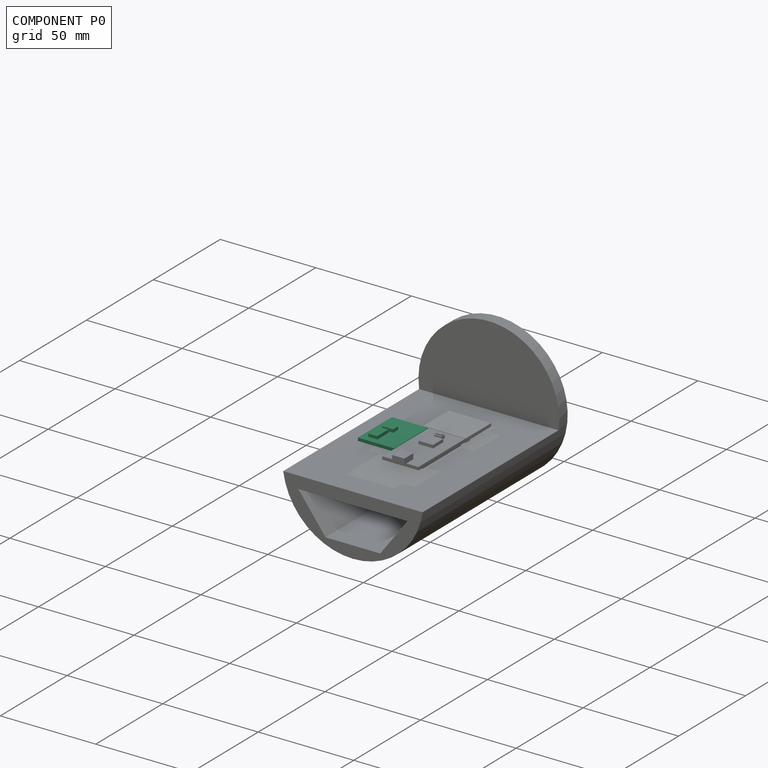
[diagram: component P0 — assembled]
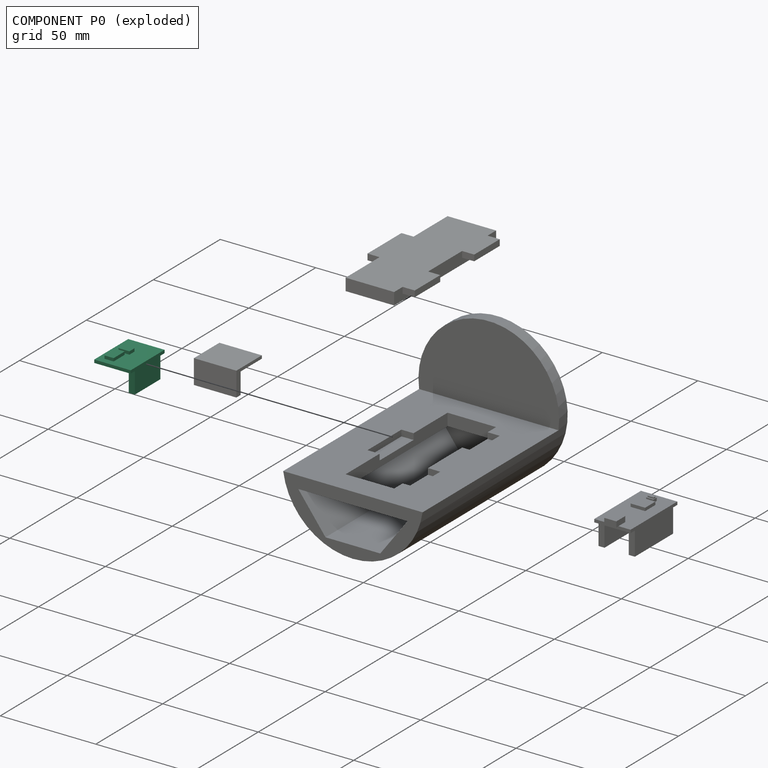
[diagram: component P0 — exploded]
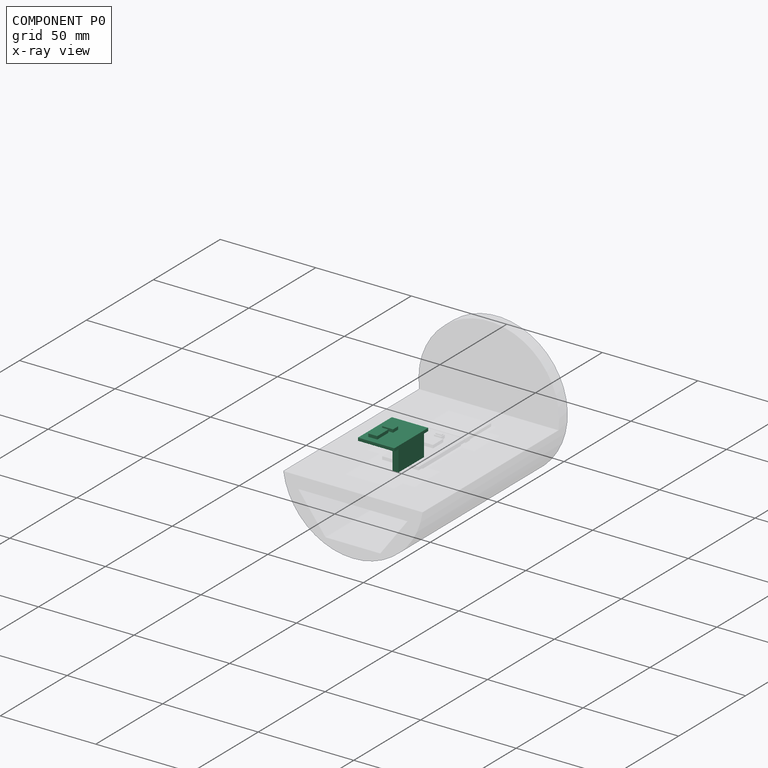
[diagram: component P0 — x-ray view]
COMPONENT P0 — recipe-attached (CADFS 00999143, mesh-verified: the recipe's output STEP matches this component's geometry to below the mesh-comparison resolution (tessellation chordal tolerance ~0.0522 mm)).
Held by: no mates (free).
Construction recipe (FeatureScript — the CAD program that rebuilds this solid; sketch coordinates are in the units given by the * unit suffixes, e.g. mm):

FeatureScript 1549;
import(path : "onshape/std/geometry.fs", version : "1549.0");
import(path : "onshape/std/common.fs", version : "1549.0");
const mm = millimeter;
const VERTEX = EntityType.VERTEX;
const EDGE = EntityType.EDGE;
const FACE = EntityType.FACE;
const BODY = EntityType.BODY;
function v(x, y){return vector(x, y);}
function OD(order){return orderDisambiguation(order);}
function OSD(set){return originalSetDisambiguation(set);}
function TD(topology){return topologyDisambiguation(topology);}
function TDD(query){return trueDependencyDisambiguation(query);}
function sQuery(a, b, c) {return sketchEntityQuery(a, b, c);}

annotation { "Feature Type Name" : "Feature", "Feature Type Description" : "" }
export const myFeature = defineFeature(function(context is Context, id is Id, definition is map)
    precondition{}
    {
        {
            var Q0;
            Q0=qCreatedBy(makeId("Top.planeOp"),FACE);
            var sketch = newSketch(context, id + "F0", { "sketchPlane" : qUnion([Q0])});
            skLineSegment(sketch, "E0.bottom", {"start": v(12.7, 9.53) * mm, "end": v(-12.7, 9.53) * mm});
            skLineSegment(sketch, "E0.top", {"start": v(12.7, -9.52) * mm, "end": v(-12.7, -9.52) * mm});
            skLineSegment(sketch, "E0.left", {"start": v(12.7, 9.53) * mm, "end": v(12.7, -9.52) * mm});
            skLineSegment(sketch, "E0.right", {"start": v(-12.7, 9.53) * mm, "end": v(-12.7, -9.52) * mm});
            skPoint(sketch, "E0.middle", {"position": v(0, 0) * mm});
            skLineSegment(sketch, "E1.bottom", {"start": v(-12.7, -9.52) * mm, "end": v(-9.53, -9.52) * mm});
            skLineSegment(sketch, "E1.top", {"start": v(-12.7, -6.35) * mm, "end": v(-9.53, -6.35) * mm});
            skLineSegment(sketch, "E1.left", {"start": v(-12.7, -9.52) * mm, "end": v(-12.7, -6.35) * mm});
            skLineSegment(sketch, "E1.right", {"start": v(-9.53, -9.52) * mm, "end": v(-9.53, -6.35) * mm});
            skLineSegment(sketch, "E2.bottom", {"start": v(12.7, -9.52) * mm, "end": v(9.53, -9.52) * mm});
            skLineSegment(sketch, "E2.top", {"start": v(12.7, -6.35) * mm, "end": v(9.53, -6.35) * mm});
            skLineSegment(sketch, "E2.left", {"start": v(12.7, -9.52) * mm, "end": v(12.7, -6.35) * mm});
            skLineSegment(sketch, "E2.right", {"start": v(9.53, -9.52) * mm, "end": v(9.53, -6.35) * mm});
            skLineSegment(sketch, "E3.bottom", {"start": v(-9.53, -6.35) * mm, "end": v(9.53, -6.35) * mm});
            skLineSegment(sketch, "E3.top", {"start": v(-9.53, -9.52) * mm, "end": v(9.53, -9.52) * mm});
            skLineSegment(sketch, "E3.left", {"start": v(-9.53, -6.35) * mm, "end": v(-9.53, -9.52) * mm});
            skLineSegment(sketch, "E3.right", {"start": v(9.53, -6.35) * mm, "end": v(9.53, -9.52) * mm});
            skLineSegment(sketch, "E4.top", {"start": v(-9.53, 9.53) * mm, "end": v(9.53, 9.53) * mm});
            skLineSegment(sketch, "E4.left", {"start": v(-9.53, -6.35) * mm, "end": v(-9.53, 9.53) * mm});
            skLineSegment(sketch, "E4.right", {"start": v(9.53, -6.35) * mm, "end": v(9.53, 9.53) * mm});
            skLineSegment(sketch, "E5.bottom", {"start": v(-9.53, 9.53) * mm, "end": v(-1.27, 9.53) * mm});
            skLineSegment(sketch, "E5.top", {"start": v(-9.53, 6.35) * mm, "end": v(-1.27, 6.35) * mm});
            skLineSegment(sketch, "E5.left", {"start": v(-9.53, 9.53) * mm, "end": v(-9.53, 6.35) * mm});
            skLineSegment(sketch, "E5.right", {"start": v(-1.27, 9.53) * mm, "end": v(-1.27, 6.35) * mm});
            skLineSegment(sketch, "E6.bottom", {"start": v(-1.27, 6.35) * mm, "end": v(-9.53, 6.35) * mm});
            skLineSegment(sketch, "E6.top", {"start": v(-1.27, 1.59) * mm, "end": v(-9.53, 1.59) * mm});
            skLineSegment(sketch, "E6.left", {"start": v(-1.27, 6.35) * mm, "end": v(-1.27, 1.59) * mm});
            skLineSegment(sketch, "E6.right", {"start": v(-9.53, 6.35) * mm, "end": v(-9.53, 1.59) * mm});
            skLineSegment(sketch, "E7.bottom", {"start": v(-1.27, 9.53) * mm, "end": v(3.8, 9.53) * mm});
            skLineSegment(sketch, "E7.top", {"start": v(-1.27, 5.72) * mm, "end": v(3.8, 5.72) * mm});
            skLineSegment(sketch, "E7.left", {"start": v(-1.27, 9.53) * mm, "end": v(-1.27, 5.72) * mm});
            skLineSegment(sketch, "E7.right", {"start": v(3.8, 9.53) * mm, "end": v(3.8, 5.72) * mm});
            skLineSegment(sketch, "E8.bottom", {"start": v(3.8, 5.72) * mm, "end": v(0, 5.72) * mm});
            skLineSegment(sketch, "E8.top", {"start": v(3.8, 0) * mm, "end": v(0, 0) * mm});
            skLineSegment(sketch, "E8.left", {"start": v(3.8, 5.72) * mm, "end": v(3.8, 0) * mm});
            skLineSegment(sketch, "E8.right", {"start": v(0, 5.72) * mm, "end": v(0, 0) * mm});
            skSolve(sketch);
        }
        {
            var Q0;
            {var subQ4=sQuery(id+"F0.wireOp",EDGE,"E1.top");Q0=makeQuery(id+"F0.imprint","IMPRINT",FACE,{"disambiguationData":[TD([[makeQuery(id+"F0.imprint","IMPRINT",EDGE,{"derivedFrom":subQ4}),-1.0]])]});}
            var Q1;
            {var subQ1=sQuery(id+"F0.wireOp",EDGE,"E1.top");Q1=makeQuery(id+"F0.imprint","IMPRINT",FACE,{"disambiguationData":[TD([[makeQuery(id+"F0.imprint","IMPRINT",EDGE,{"derivedFrom":subQ1}),1.0]])]});}
            var Q2;
            {var subQ8=sQuery(id+"F0.wireOp",EDGE,"E3.bottom");Q2=makeQuery(id+"F0.imprint","IMPRINT",FACE,{"disambiguationData":[TD([[makeQuery(id+"F0.imprint","IMPRINT",EDGE,{"derivedFrom":subQ8}),1.0]])]});}
            var Q3;
            {var subQ4=sQuery(id+"F0.wireOp",EDGE,"E5.top");Q3=makeQuery(id+"F0.imprint","IMPRINT",FACE,{"disambiguationData":[TD([[makeQuery(id+"F0.imprint","IMPRINT",EDGE,{"derivedFrom":subQ4}),1.0]])]});}
            var Q4;
            {var subQ4=sQuery(id+"F0.wireOp",EDGE,"E5.right");Q4=makeQuery(id+"F0.imprint","IMPRINT",FACE,{"disambiguationData":[TD([[makeQuery(id+"F0.imprint","IMPRINT",EDGE,{"derivedFrom":subQ4}),1.0]])]});}
            var Q5;
            {var subQ4=sQuery(id+"F0.wireOp",EDGE,"E2.top");Q5=makeQuery(id+"F0.imprint","IMPRINT",FACE,{"disambiguationData":[TD([[makeQuery(id+"F0.imprint","IMPRINT",EDGE,{"derivedFrom":subQ4}),-1.0]])]});}
            var Q6;
            {var subQ4=sQuery(id+"F0.wireOp",EDGE,"E2.top");Q6=makeQuery(id+"F0.imprint","IMPRINT",FACE,{"disambiguationData":[TD([[makeQuery(id+"F0.imprint","IMPRINT",EDGE,{"derivedFrom":subQ4}),1.0]])]});}
            extrude(context, id + "F1", {"entities" : qUnion([Q0, Q1, Q2, Q3, Q4, Q5, Q6]), "depth" : 1.59 * mm, "offsetDistance" : 25.4 * mm});
        }
        {
            var Q0;
            {var subQ3=sQuery(id+"F0.wireOp",EDGE,"E5.top");Q0=makeQuery(id+"F0.imprint","IMPRINT",FACE,{"disambiguationData":[TD([[makeQuery(id+"F0.imprint","IMPRINT",EDGE,{"derivedFrom":subQ3}),-1.0]])]});}
            var Q1;
            Q1=makeQuery(id+"F0.imprint","IMPRINT",FACE,{"disambiguationData":[TD([[makeQuery(id+"F0.imprint","IMPRINT",EDGE,{"derivedFrom":sQuery(id+"F0.wireOp",EDGE,"E8.top")}),-1.0]])]});
            extrude(context, id + "F2", {"entities" : qUnion([Q0, Q1]), "operationType" : NewBodyOperationType.ADD, "depth" : 3.17 * mm, "offsetDistance" : 25.4 * mm});
        }
        {
            var Q0;
            {var subQ2=sQuery(id+"F0.wireOp",EDGE,"E1.right");Q0=makeQuery(id+"F0.imprint","IMPRINT",FACE,{"disambiguationData":[TD([[makeQuery(id+"F0.imprint","IMPRINT",EDGE,{"derivedFrom":subQ2}),-1.0]])]});}
            extrude(context, id + "F3", {"entities" : qUnion([Q0]), "operationType" : NewBodyOperationType.ADD, "depth" : 1.59 * mm, "offsetDistance" : 25.4 * mm});
        }
        {
            var Q0;
            {var subQ2=sQuery(id+"F0.wireOp",EDGE,"E1.right");Q0=makeQuery(id+"F0.imprint","IMPRINT",FACE,{"disambiguationData":[TD([[makeQuery(id+"F0.imprint","IMPRINT",EDGE,{"derivedFrom":subQ2}),-1.0]])]});}
            extrude(context, id + "F4", {"entities" : qUnion([Q0]), "operationType" : NewBodyOperationType.ADD, "oppositeDirection" : true, "depth" : 11.1 * mm, "offsetDistance" : 25.4 * mm});
        }
    });
PROVENANCE & LICENSES
Assembly (occurrences, transforms, mates, per-part STEP geometry): AutoMate dataset, Zenodo record 7776208, CC0.
Construction recipes: CADFS (HuggingFace VladPyatov/CADFS, CC-BY-4.0, layered over the ABC dataset), FeatureScript reconstruction programs keyed by ABC model id.
Join: ABC meta listings map ABC model id -> Onshape documentId; within a shared document, parts are matched by geometric signature (bounding-box dims + volume at 0.1% relative tolerance, exact B-rep face/solid counts).
Verification: 5 of this assembly's 5 components carry a recipe attachment, and every attachment is mesh-verified: the CADFS STEP and the AutoMate member STEP were compared as meshes in their shared local frame (symmetric sampled-point-to-mesh distance); worst across the 5 attachments: below the mesh-comparison resolution (tessellation chordal tolerance ~0.225 mm) on a 150 mm part.
Renders: orthographic iso camera (az 35 / el 25); the floor grid conveys scale (grid pitch printed in each image; no ruler). In the exploded view each component is displaced by its stored offset vector: the offsets alone carry the explosion direction (mate normal/axis signs are not orientation cues and do not encode it), and separation distances are assigned per mate-chain, not proportionally to assembly-order depth.
